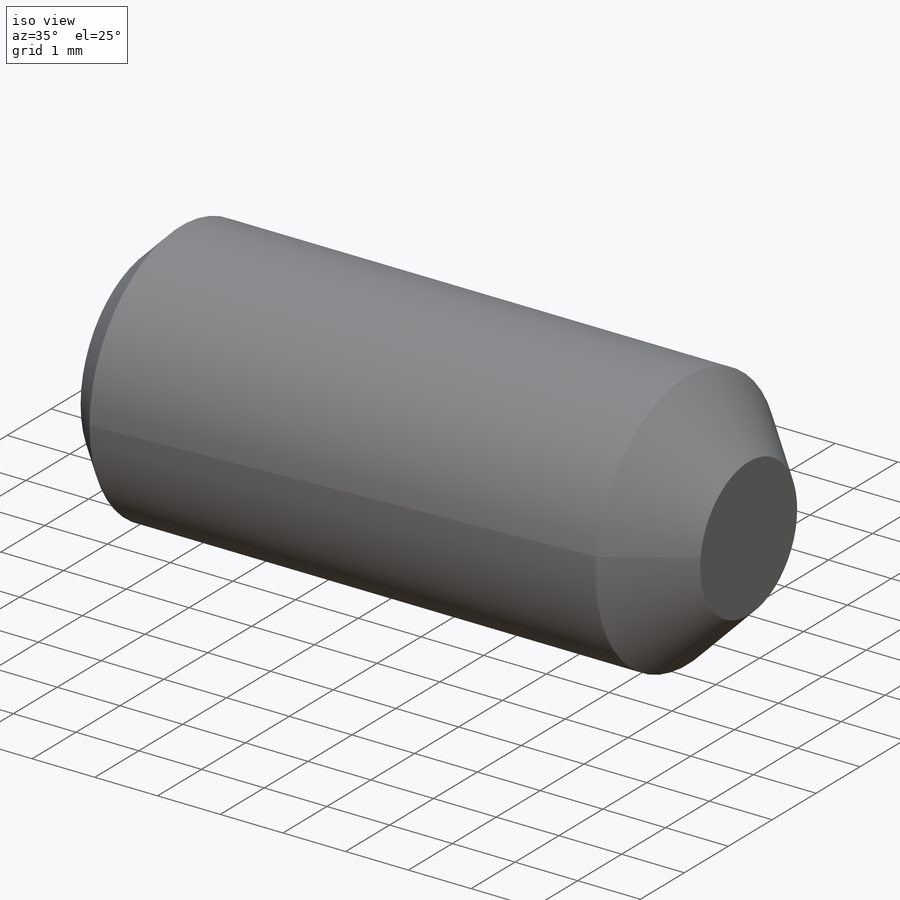
[diagram: iso view]
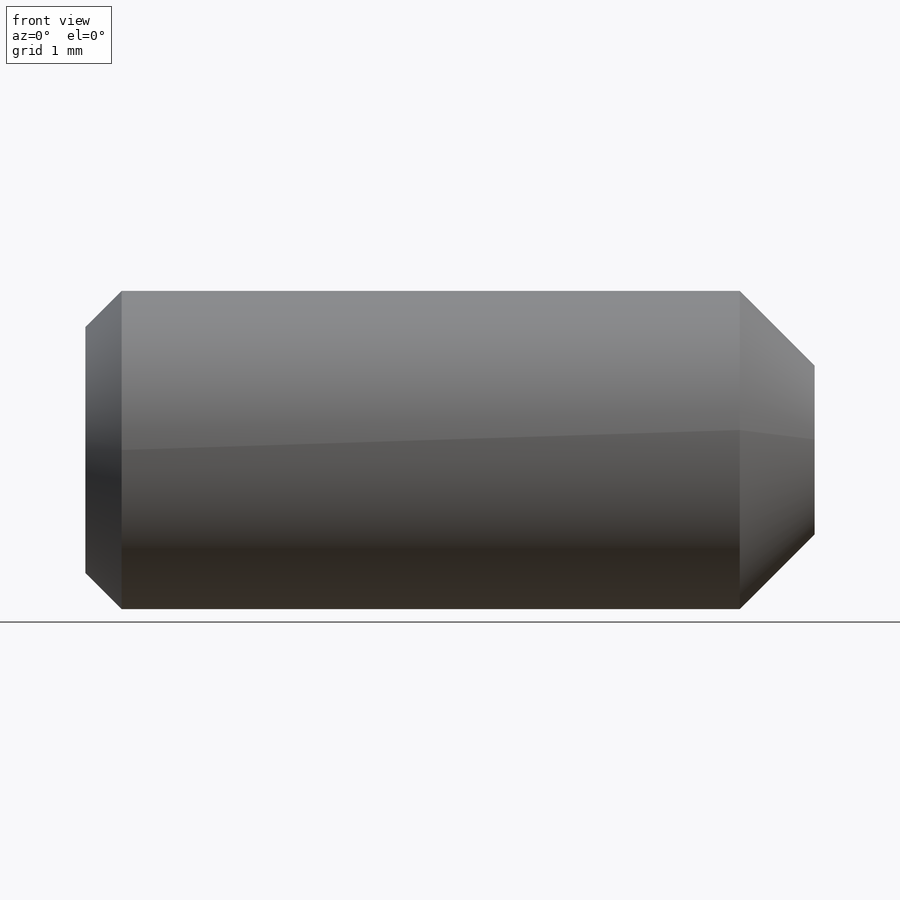
[diagram: front view]
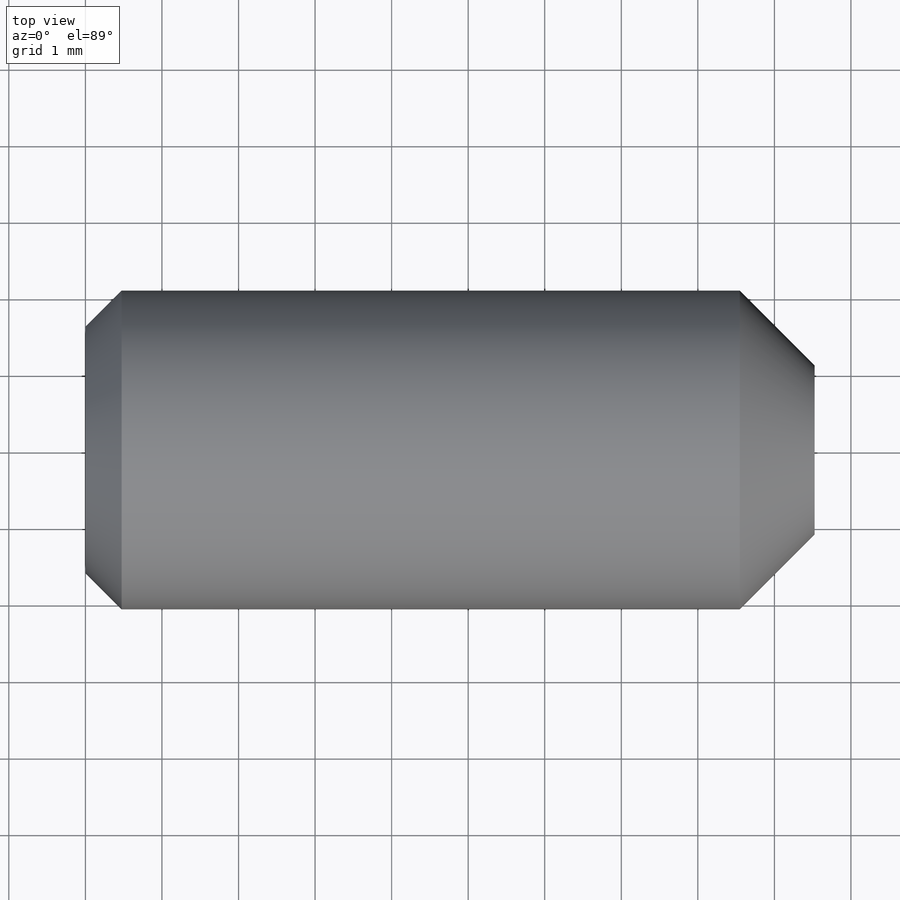
[diagram: top view]
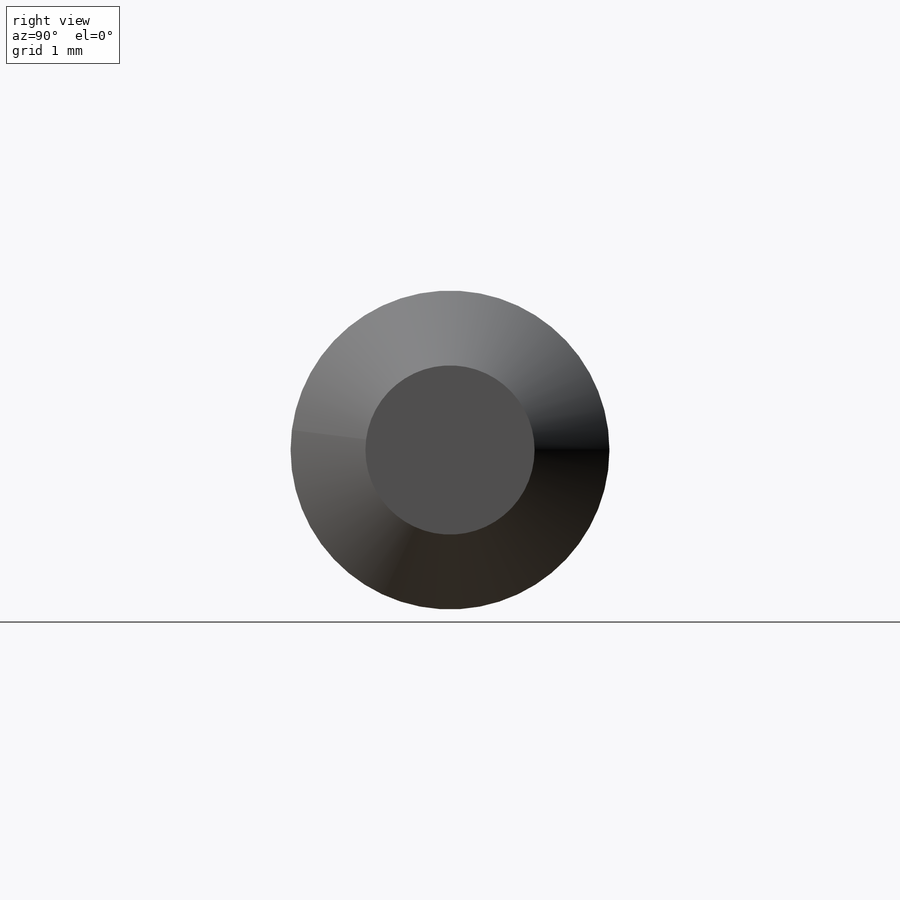
[diagram: right view]
SOLIDWORKS PART (.sldprt)
format: sldprt  version: not decoded by parser v0  size: 559,104 bytes
history: native  units: mm
features: sketch x4, plane x3, cut_extrude x2, material x1, revolve x1, thread x1, pattern_circular x1, cut_revolve x1, pattern_linear x1 (+8 scaffold rows collapsed)
feature tree (23):
  scaffold x8  (default folders/planes/origin — collapsed)
  material  "Material <not specified>"
  plane  "Plane1"
  plane  "Plane2"
  plane  "Plane3"
  sketch  "BodySke"  dims[c1.D1=~35.921024mm c2.D1=270.0deg c3.D1=~35.921024mm c3.Cone_ang=90.0deg c3.Length=50.8mm c3.Diameter=4.1656mm c3.D4=~4.490128mm c3.Drive_ch_ang=45.0deg c3.Minor_dia=~3.22072mm c4.D1=~8.980256mm c4.Cup_nose_ang=45.0deg c5.D1=~7.099516mm c5.Cup_ang=118.0deg c5.Cup_dia=2.2098mm c5.Length=9.525mm c5.Advance=~0.79248mm c5.Head_ht=~1.88976mm c5.BodyLength=~43.94454mm]
  revolve  "BaseBody"  [1 undecoded]
  thread  "ThreadCosmetic"  Diameter=3.22072mm Thread_minor=3.22072mm  [1 undecoded]
  sketch  "Sketch2"  dims[Hex_size=1.9812mm D2=0.9906mm D3=0.9906mm]
  cut_extrude  "Hex"  Depth=2.286mm Key_eng=2.286mm
  sketch  "Sketch4"  dims[c1.Spline_n_dim=17.399mm c1.Spline_m_dim=20.3454mm c2.Spline_n_dim=2.0828mm c2.Spline_m_dim=2.4892mm c2.D1=5.8547mm c3.D1=30.0deg c3.D2=5.8547mm c3.Spline_a_dim=60.0deg c3.Spline_p_dim=2.794mm c4.Spline_p_dim=0.5588mm c4.D3=0.2794mm]
  cut_extrude  "Spline"  Depth=2.032mm Key_eng=2.032mm
  pattern_circular  "CirPattern1"  Count=6 Angle=60deg Num_teeth=6
  sketch  "ThdSchSke"  dims[c1.Thread_minor=~1.03886mm c1.Diameter=~1.413535mm c1.Start=~0.988134mm c1.D4=~4.446753mm c1.Vee=60.0deg c2.Thread_minor=~1.03886mm c2.Start=~2.540025mm c2.D1=~0.108159mm c2.D2=~0.108159mm c3.D1=~0.216319mm c3.SideAngle=55.0deg c3.D2=~0.216319mm c3.VeeAngle=70.0deg c3.Thread_minor=~3.22072mm c3.Overcut=5.207mm c3.Diameter=4.1656mm c3.D6=~8.326268mm c4.D1=~8.326268mm c5.D1=90.0deg c5.Start=63.5mm c6.Start=20.5486mm c7.Start=~1.88976mm]
  cut_revolve  "ThreadSchematic"  Angle=360deg
  pattern_linear  "ThdSchPat"  Count1=12 Count2=1 Spacing1=0.73406mm Spacing2=50mm Num_threads=12 Advance=0.73406mm
decode coverage: 10 of 11 modeling features carry decoded parameters
note: ~ marks probable driven/reference dimensions
note: 2 parameter values undecoded
note: suppression state not decoded; provenance and decode notes live in map.json
